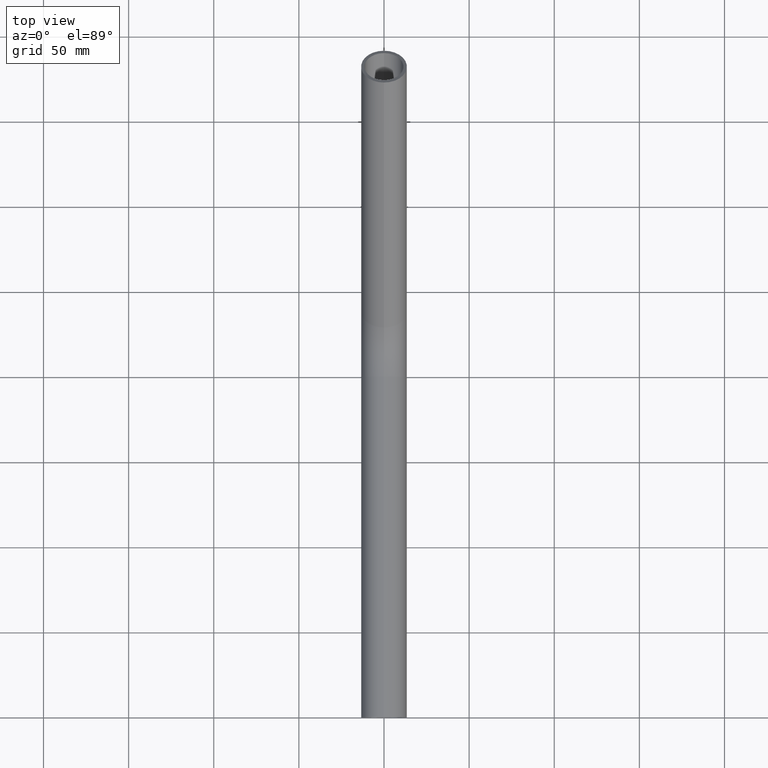
[diagram: clean part render]
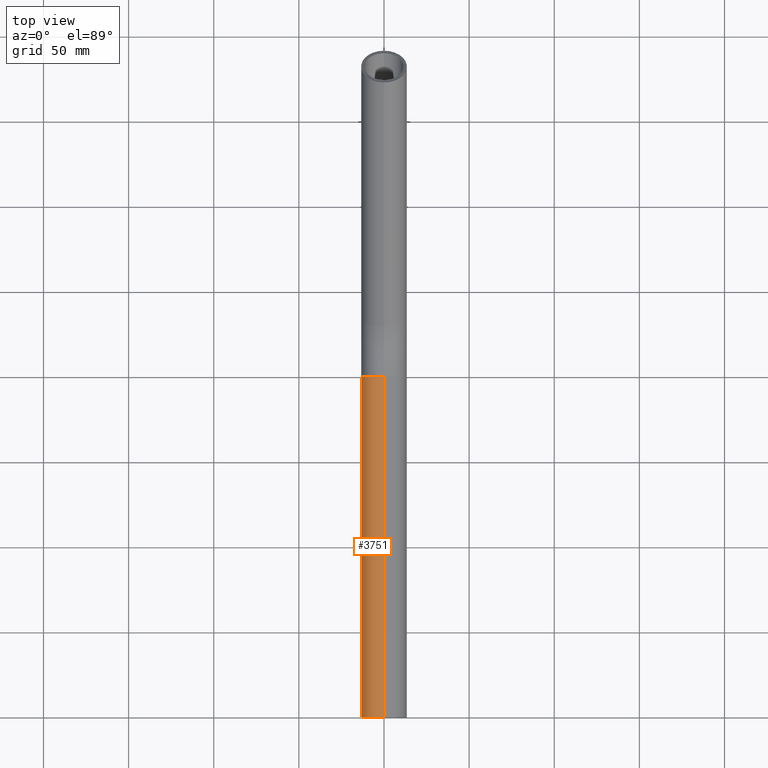
[diagram: same view with one face highlighted and labeled with its STEP entity id]
A machine part, top view. The second image highlights one B-rep face of the part: STEP entity #3751.
In plain terms, the highlighted cylindrical surface (edge-blend (fillet) strip) has radius 13.45 mm, axis along (-0, -1, -0).
Its self-contained STEP definition (entity closure, byte-faithful):
#617 = AXIS2_PLACEMENT_3D ( 'NONE', #9572, #10392, #1180 ) ;
#1180 = DIRECTION ( 'NONE',  ( 0.0000000000000000000, 0.0000000000000000000, 1.000000000000000000 ) ) ;
#1300 = CARTESIAN_POINT ( 'NONE',  ( 1.647149944853190000E-015, 200.0000000000000000, 13.44999999999999900 ) ) ;
#1486 = EDGE_LOOP ( 'NONE', ( #3762, #10743, #6454, #7684 ) ) ;
#1941 = DIRECTION ( 'NONE',  ( 0.0000000000000000000, 0.0000000000000000000, 1.000000000000000000 ) ) ;
#2671 = VECTOR ( 'NONE', #5519, 1000.000000000000000 ) ;
#2786 = CIRCLE ( 'NONE', #617, 13.44999999999999900 ) ;
#2834 = DIRECTION ( 'NONE',  ( 0.0000000000000000000, 1.000000000000000000, 0.0000000000000000000 ) ) ;
#2978 = CARTESIAN_POINT ( 'NONE',  ( 1.647149944853190000E-015, 200.0000000000000000, 13.44999999999999900 ) ) ;
#3085 = FACE_OUTER_BOUND ( 'NONE', #1486, .T. ) ;
#3227 = AXIS2_PLACEMENT_3D ( 'NONE', #9566, #8776, #5349 ) ;
#3554 = VECTOR ( 'NONE', #5472, 1000.000000000000000 ) ;
#3751 = ADVANCED_FACE ( 'NONE', ( #3085 ), #9548, .T. ) ;
#3762 = ORIENTED_EDGE ( 'NONE', *, *, #10916, .F. ) ;
#3814 = CARTESIAN_POINT ( 'NONE',  ( 0.0000000000000000000, 0.0000000000000000000, -13.44999999999999900 ) ) ;
#3846 = CARTESIAN_POINT ( 'NONE',  ( 0.0000000000000000000, 200.0000000000000000, -13.44999999999999900 ) ) ;
#3866 = CARTESIAN_POINT ( 'NONE',  ( 0.0000000000000000000, 200.0000000000000000, -13.44999999999999900 ) ) ;
#5075 = EDGE_CURVE ( 'NONE', #6997, #5216, #9144, .T. ) ;
#5216 = VERTEX_POINT ( 'NONE', #8089 ) ;
#5299 = CARTESIAN_POINT ( 'NONE',  ( 0.0000000000000000000, 0.0000000000000000000, 0.0000000000000000000 ) ) ;
#5349 = DIRECTION ( 'NONE',  ( 0.0000000000000000000, 0.0000000000000000000, -1.000000000000000000 ) ) ;
#5436 = LINE ( 'NONE', #3866, #2671 ) ;
#5472 = DIRECTION ( 'NONE',  ( -0.0000000000000000000, -1.000000000000000000, -0.0000000000000000000 ) ) ;
#5519 = DIRECTION ( 'NONE',  ( -0.0000000000000000000, -1.000000000000000000, -0.0000000000000000000 ) ) ;
#6015 = EDGE_CURVE ( 'NONE', #10378, #6997, #5436, .T. ) ;
#6415 = AXIS2_PLACEMENT_3D ( 'NONE', #5299, #2834, #1941 ) ;
#6454 = ORIENTED_EDGE ( 'NONE', *, *, #6015, .T. ) ;
#6997 = VERTEX_POINT ( 'NONE', #3814 ) ;
#7684 = ORIENTED_EDGE ( 'NONE', *, *, #5075, .T. ) ;
#8089 = CARTESIAN_POINT ( 'NONE',  ( 1.647149944853190000E-015, 0.0000000000000000000, 13.44999999999999900 ) ) ;
#8776 = DIRECTION ( 'NONE',  ( -0.0000000000000000000, -1.000000000000000000, -0.0000000000000000000 ) ) ;
#8777 = EDGE_CURVE ( 'NONE', #10378, #9819, #2786, .T. ) ;
#8851 = LINE ( 'NONE', #1300, #3554 ) ;
#9144 = CIRCLE ( 'NONE', #6415, 13.44999999999999900 ) ;
#9548 = CYLINDRICAL_SURFACE ( 'NONE', #3227, 13.44999999999999900 ) ;
#9566 = CARTESIAN_POINT ( 'NONE',  ( 0.0000000000000000000, 200.0000000000000000, 0.0000000000000000000 ) ) ;
#9572 = CARTESIAN_POINT ( 'NONE',  ( 0.0000000000000000000, 200.0000000000000000, 0.0000000000000000000 ) ) ;
#9819 = VERTEX_POINT ( 'NONE', #2978 ) ;
#10378 = VERTEX_POINT ( 'NONE', #3846 ) ;
#10392 = DIRECTION ( 'NONE',  ( 0.0000000000000000000, 1.000000000000000000, 0.0000000000000000000 ) ) ;
#10743 = ORIENTED_EDGE ( 'NONE', *, *, #8777, .F. ) ;
#10916 = EDGE_CURVE ( 'NONE', #9819, #5216, #8851, .T. ) ;